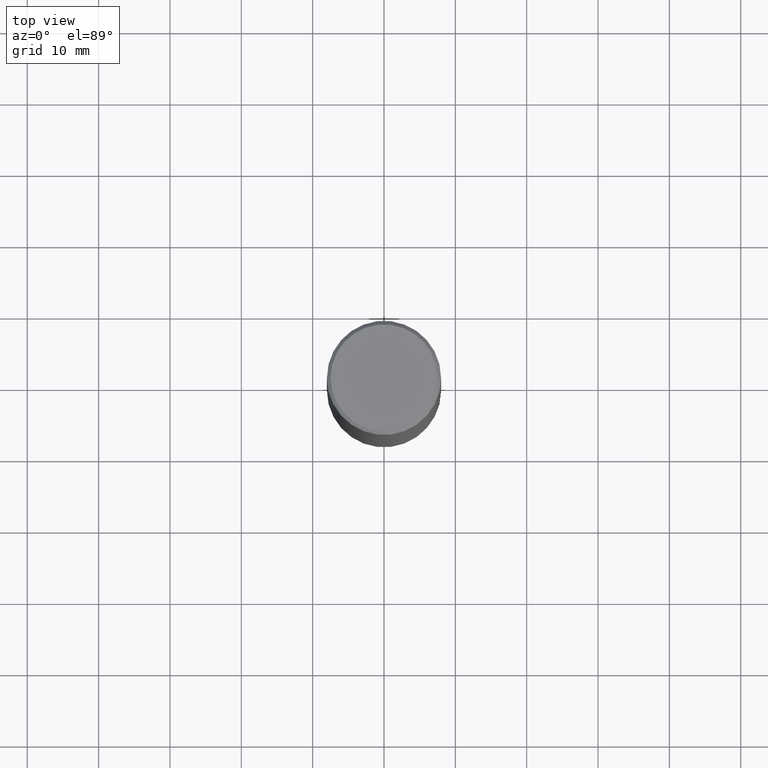
[diagram: clean part render]
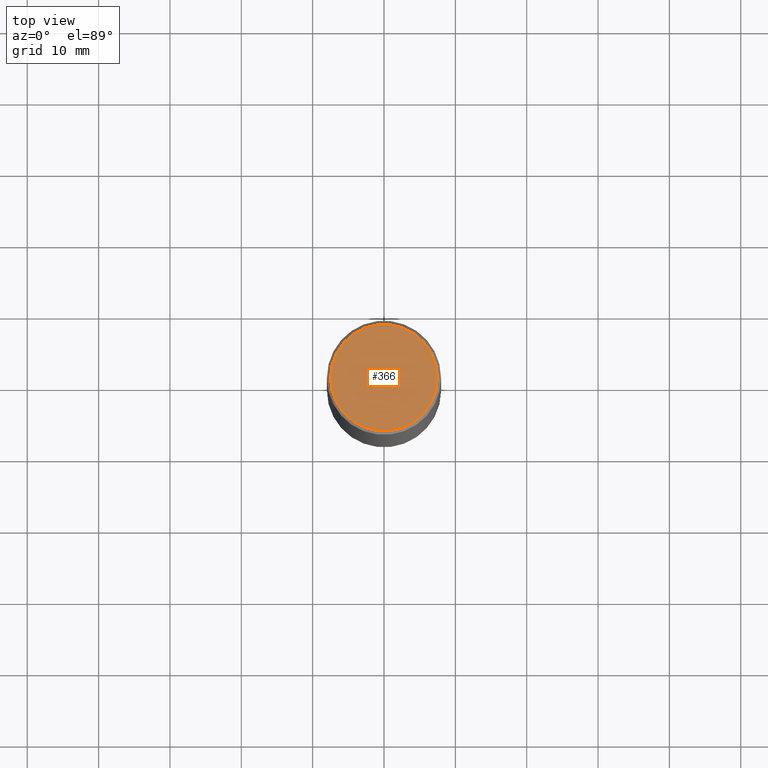
[diagram: same view with one face highlighted and labeled with its STEP entity id]
A machine part, top view. The second image highlights one B-rep face of the part: STEP entity #366.
In plain terms, the highlighted planar face has unit normal (0, -0, -1).
Its self-contained STEP definition (entity closure, byte-faithful):
#33 = CIRCLE ( 'NONE', #133, 0.2949499999999997124 ) ;
#57 = DIRECTION ( 'NONE',  ( 2.438088387897960049E-29, -3.491481338843145188E-15, -1.000000000000000000 ) ) ;
#59 = CARTESIAN_POINT ( 'NONE',  ( 3.131554243005659264E-46, -4.471029511141341874E-32, -1.280553747030123384E-17 ) ) ;
#62 = CARTESIAN_POINT ( 'NONE',  ( 2.059624841783562091E-15, 0.2949499999999997124, -1.036215189626935433E-15 ) ) ;
#94 = DIRECTION ( 'NONE',  ( -2.445468806185136597E-29, 3.491481338843145583E-15, 1.000000000000000000 ) ) ;
#115 = AXIS2_PLACEMENT_3D ( 'NONE', #59, #94, #258 ) ;
#124 = FACE_OUTER_BOUND ( 'NONE', #356, .T. ) ;
#133 = AXIS2_PLACEMENT_3D ( 'NONE', #331, #338, #231 ) ;
#175 = CIRCLE ( 'NONE', #115, 0.2949499999999997124 ) ;
#178 = DIRECTION ( 'NONE',  ( -1.000000000000000000, 6.982962677686265922E-15, -4.876176775795935793E-29 ) ) ;
#192 = VERTEX_POINT ( 'NONE', #302 ) ;
#231 = DIRECTION ( 'NONE',  ( 1.000000000000000000, -6.982962677686267499E-15, 4.876053491004739391E-29 ) ) ;
#241 = ORIENTED_EDGE ( 'NONE', *, *, #355, .T. ) ;
#254 = VERTEX_POINT ( 'NONE', #281 ) ;
#258 = DIRECTION ( 'NONE',  ( 1.000000000000000000, -6.982962677686267499E-15, 4.876053491004739391E-29 ) ) ;
#281 = CARTESIAN_POINT ( 'NONE',  ( -0.2949499999999997124, 2.094539655171993740E-15, -1.280553747031575997E-17 ) ) ;
#302 = CARTESIAN_POINT ( 'NONE',  ( 0.2949499999999997124, -2.127023677808858103E-15, -1.280553747028659369E-17 ) ) ;
#307 = PLANE ( 'NONE',  #311 ) ;
#311 = AXIS2_PLACEMENT_3D ( 'NONE', #62, #57, #178 ) ;
#331 = CARTESIAN_POINT ( 'NONE',  ( 3.131554243005659264E-46, -4.471029511141341874E-32, -1.280553747030123384E-17 ) ) ;
#334 = EDGE_CURVE ( 'NONE', #254, #192, #33, .T. ) ;
#338 = DIRECTION ( 'NONE',  ( -2.445468806185136597E-29, 3.491481338843145583E-15, 1.000000000000000000 ) ) ;
#348 = ORIENTED_EDGE ( 'NONE', *, *, #334, .T. ) ;
#355 = EDGE_CURVE ( 'NONE', #192, #254, #175, .T. ) ;
#356 = EDGE_LOOP ( 'NONE', ( #348, #241 ) ) ;
#366 = ADVANCED_FACE ( 'NONE', ( #124 ), #307, .F. ) ;